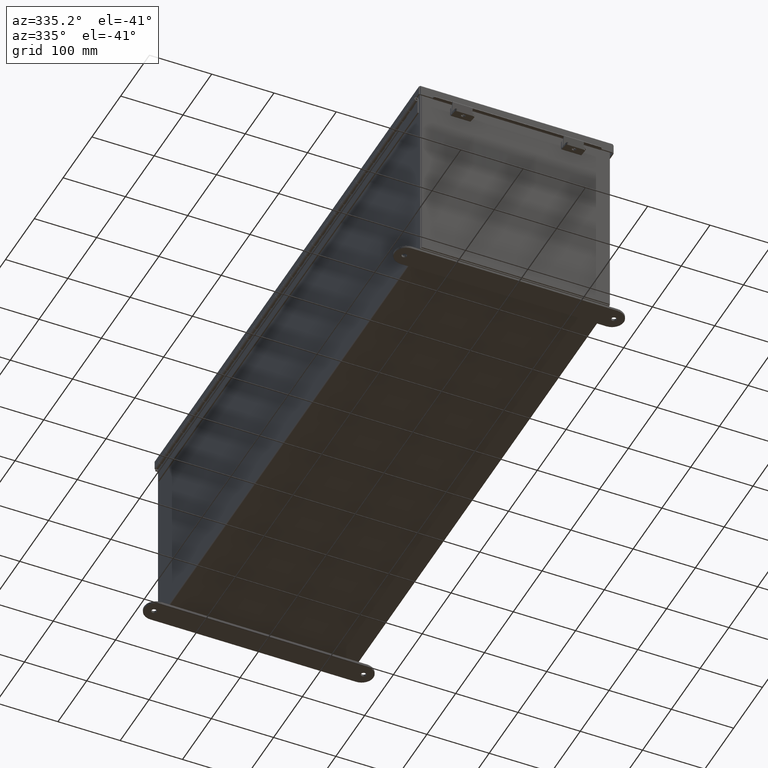
[diagram: clean part render]
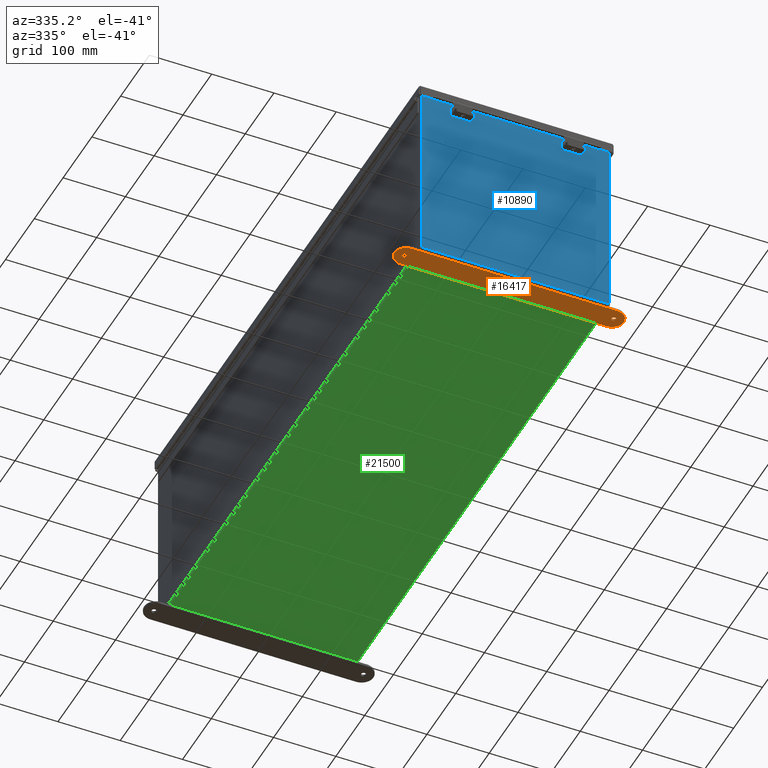
[diagram: same view with three faces highlighted in distinct colors, each labeled with its STEP entity id]
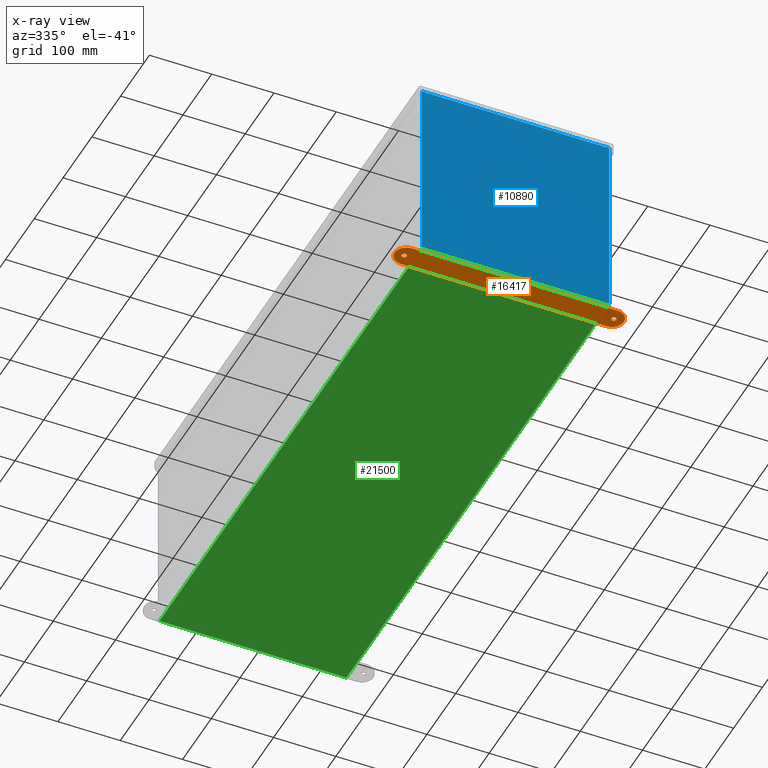
[diagram: x-ray of the same camera — body ghosted, the three highlighted faces saturated]
A machine part, auxiliary view with three faces highlighted in distinct colors.
The next image is the same camera in x-ray (body ghosted, the three faces saturated) — at least one of them is partly hidden behind the body in this view.
Their STEP definitions:

[orange] entity #16417 — the highlighted planar face has unit normal (0, 0, -1).
#129 = CARTESIAN_POINT ( 'NONE',  ( -6.500000000000000000, 0.4120940649496124300, -0.1345000000000000100 ) ) ;
#614 = FACE_OUTER_BOUND ( 'NONE', #12511, .T. ) ;
#1650 = CARTESIAN_POINT ( 'NONE',  ( 6.500000000000000000, 0.4120940649496125900, -0.1345000000000000100 ) ) ;
#1959 = DIRECTION ( 'NONE',  ( -1.000000000000000000, 0.0000000000000000000, 0.0000000000000000000 ) ) ;
#2119 = CIRCLE ( 'NONE', #18543, 0.1564999999999992800 ) ;
#2143 = EDGE_CURVE ( 'NONE', #25189, #12037, #6614, .T. ) ;
#2448 = DIRECTION ( 'NONE',  ( 1.000000000000000000, 0.0000000000000000000, 0.0000000000000000000 ) ) ;
#2954 = EDGE_CURVE ( 'NONE', #25446, #25842, #4046, .T. ) ;
#3486 = CIRCLE ( 'NONE', #26088, 0.7500000000000015500 ) ;
#3798 = CARTESIAN_POINT ( 'NONE',  ( 7.250000000000001800, 0.4120940649496125900, -0.1345000000000000100 ) ) ;
#3945 = DIRECTION ( 'NONE',  ( -1.000000000000000000, 0.0000000000000000000, 0.0000000000000000000 ) ) ;
#4012 = CIRCLE ( 'NONE', #22273, 0.7499999999999993300 ) ;
#4046 = CIRCLE ( 'NONE', #13680, 0.7500000000000015500 ) ;
#4097 = VERTEX_POINT ( 'NONE', #4166 ) ;
#4166 = CARTESIAN_POINT ( 'NONE',  ( -6.781499999999999400, 0.4120940649496083700, -0.1345000000000000100 ) ) ;
#5371 = CARTESIAN_POINT ( 'NONE',  ( 6.625000000000000900, 0.4120940649496083700, -0.1345000000000000100 ) ) ;
#5433 = AXIS2_PLACEMENT_3D ( 'NONE', #7568, #12238, #28318 ) ;
#5600 = DIRECTION ( 'NONE',  ( -0.0000000000000000000, -0.0000000000000000000, -1.000000000000000000 ) ) ;
#5738 = CARTESIAN_POINT ( 'NONE',  ( 6.500000000000000000, -0.3379059350503891300, -0.1345000000000000100 ) ) ;
#6314 = ORIENTED_EDGE ( 'NONE', *, *, #20263, .F. ) ;
#6614 = CIRCLE ( 'NONE', #26400, 0.1564999999999992800 ) ;
#6650 = LINE ( 'NONE', #13742, #12087 ) ;
#6714 = FACE_BOUND ( 'NONE', #21770, .T. ) ;
#7316 = AXIS2_PLACEMENT_3D ( 'NONE', #29550, #15741, #1959 ) ;
#7371 = VERTEX_POINT ( 'NONE', #13708 ) ;
#7568 = CARTESIAN_POINT ( 'NONE',  ( 6.500000000000000000, 0.4120940649496125900, -0.1345000000000000100 ) ) ;
#7681 = DIRECTION ( 'NONE',  ( -1.000000000000000000, 0.0000000000000000000, 0.0000000000000000000 ) ) ;
#9074 = DIRECTION ( 'NONE',  ( 1.000000000000000000, -1.260852920152736700E-016, 0.0000000000000000000 ) ) ;
#9695 = DIRECTION ( 'NONE',  ( 0.0000000000000000000, 0.0000000000000000000, 1.000000000000000000 ) ) ;
#9756 = CARTESIAN_POINT ( 'NONE',  ( 6.468500000000001500, 0.4120940649496083700, -0.1345000000000000100 ) ) ;
#10031 = EDGE_LOOP ( 'NONE', ( #20342, #25031 ) ) ;
#10564 = ORIENTED_EDGE ( 'NONE', *, *, #26998, .F. ) ;
#11554 = CARTESIAN_POINT ( 'NONE',  ( -6.500000000000000000, 1.162094064949612300, -0.1345000000000000100 ) ) ;
#11586 = ORIENTED_EDGE ( 'NONE', *, *, #24355, .T. ) ;
#12037 = VERTEX_POINT ( 'NONE', #28066 ) ;
#12087 = VECTOR ( 'NONE', #9074, 39.37007874015748100 ) ;
#12238 = DIRECTION ( 'NONE',  ( -0.0000000000000000000, 0.0000000000000000000, -1.000000000000000000 ) ) ;
#12496 = ORIENTED_EDGE ( 'NONE', *, *, #16252, .F. ) ;
#12511 = EDGE_LOOP ( 'NONE', ( #21540, #10564, #6314, #12496, #28751 ) ) ;
#12698 = CARTESIAN_POINT ( 'NONE',  ( -6.625000000000000900, 0.4120940649496083700, -0.1345000000000000100 ) ) ;
#12876 = VERTEX_POINT ( 'NONE', #5738 ) ;
#13303 = CARTESIAN_POINT ( 'NONE',  ( -6.468500000000001500, 0.4120940649496083700, -0.1345000000000000100 ) ) ;
#13680 = AXIS2_PLACEMENT_3D ( 'NONE', #1650, #17750, #3945 ) ;
#13708 = CARTESIAN_POINT ( 'NONE',  ( -6.500000000000000000, 1.162094064949612300, -0.1345000000000000100 ) ) ;
#13742 = CARTESIAN_POINT ( 'NONE',  ( -6.500000000000000000, -0.3379059350503874600, -0.1345000000000000100 ) ) ;
#14213 = EDGE_CURVE ( 'NONE', #12037, #25189, #26314, .T. ) ;
#14786 = ORIENTED_EDGE ( 'NONE', *, *, #15408, .T. ) ;
#14972 = DIRECTION ( 'NONE',  ( -1.000000000000000000, 0.0000000000000000000, 0.0000000000000000000 ) ) ;
#15408 = EDGE_CURVE ( 'NONE', #25551, #4097, #2119, .T. ) ;
#15741 = DIRECTION ( 'NONE',  ( 0.0000000000000000000, 0.0000000000000000000, 1.000000000000000000 ) ) ;
#16236 = DIRECTION ( 'NONE',  ( 0.0000000000000000000, 0.0000000000000000000, 1.000000000000000000 ) ) ;
#16252 = EDGE_CURVE ( 'NONE', #25842, #7371, #22589, .T. ) ;
#16254 = DIRECTION ( 'NONE',  ( -1.000000000000000000, -1.260852920152736700E-016, -0.0000000000000000000 ) ) ;
#16335 = EDGE_CURVE ( 'NONE', #12876, #25446, #3486, .T. ) ;
#16417 = ADVANCED_FACE ( 'NONE', ( #614, #6714, #18975 ), #23702, .T. ) ;
#16475 = VECTOR ( 'NONE', #16254, 39.37007874015748100 ) ;
#16771 = CARTESIAN_POINT ( 'NONE',  ( 6.500000000000000000, 1.162094064949614100, -0.1345000000000000100 ) ) ;
#17750 = DIRECTION ( 'NONE',  ( 0.0000000000000000000, 0.0000000000000000000, 1.000000000000000000 ) ) ;
#18543 = AXIS2_PLACEMENT_3D ( 'NONE', #12698, #28780, #14972 ) ;
#18975 = FACE_BOUND ( 'NONE', #10031, .T. ) ;
#19019 = CIRCLE ( 'NONE', #7316, 0.1564999999999992800 ) ;
#19421 = CARTESIAN_POINT ( 'NONE',  ( 6.625000000000000900, 0.4120940649496083700, -0.1345000000000000100 ) ) ;
#20263 = EDGE_CURVE ( 'NONE', #7371, #29466, #4012, .T. ) ;
#20342 = ORIENTED_EDGE ( 'NONE', *, *, #14213, .F. ) ;
#21415 = AXIS2_PLACEMENT_3D ( 'NONE', #5371, #21487, #7681 ) ;
#21487 = DIRECTION ( 'NONE',  ( -0.0000000000000000000, -0.0000000000000000000, -1.000000000000000000 ) ) ;
#21540 = ORIENTED_EDGE ( 'NONE', *, *, #16335, .F. ) ;
#21724 = DIRECTION ( 'NONE',  ( -1.000000000000000000, 0.0000000000000000000, 0.0000000000000000000 ) ) ;
#21770 = EDGE_LOOP ( 'NONE', ( #14786, #11586 ) ) ;
#22273 = AXIS2_PLACEMENT_3D ( 'NONE', #129, #16236, #2448 ) ;
#22589 = LINE ( 'NONE', #11554, #16475 ) ;
#23054 = CARTESIAN_POINT ( 'NONE',  ( -6.500000000000000000, -0.3379059350503874600, -0.1345000000000000100 ) ) ;
#23498 = CARTESIAN_POINT ( 'NONE',  ( 6.500000000000000000, 0.4120940649496125900, -0.1345000000000000100 ) ) ;
#23702 = PLANE ( 'NONE',  #5433 ) ;
#24355 = EDGE_CURVE ( 'NONE', #4097, #25551, #19019, .T. ) ;
#25031 = ORIENTED_EDGE ( 'NONE', *, *, #2143, .F. ) ;
#25189 = VERTEX_POINT ( 'NONE', #9756 ) ;
#25446 = VERTEX_POINT ( 'NONE', #3798 ) ;
#25551 = VERTEX_POINT ( 'NONE', #13303 ) ;
#25835 = DIRECTION ( 'NONE',  ( -1.000000000000000000, 0.0000000000000000000, 0.0000000000000000000 ) ) ;
#25842 = VERTEX_POINT ( 'NONE', #16771 ) ;
#26088 = AXIS2_PLACEMENT_3D ( 'NONE', #23498, #9695, #25835 ) ;
#26314 = CIRCLE ( 'NONE', #21415, 0.1564999999999992800 ) ;
#26400 = AXIS2_PLACEMENT_3D ( 'NONE', #19421, #5600, #21724 ) ;
#26998 = EDGE_CURVE ( 'NONE', #29466, #12876, #6650, .T. ) ;
#28066 = CARTESIAN_POINT ( 'NONE',  ( 6.781499999999999400, 0.4120940649496083700, -0.1345000000000000100 ) ) ;
#28318 = DIRECTION ( 'NONE',  ( -1.000000000000000000, 0.0000000000000000000, 0.0000000000000000000 ) ) ;
#28751 = ORIENTED_EDGE ( 'NONE', *, *, #2954, .F. ) ;
#28780 = DIRECTION ( 'NONE',  ( 0.0000000000000000000, 0.0000000000000000000, 1.000000000000000000 ) ) ;
#29466 = VERTEX_POINT ( 'NONE', #23054 ) ;
#29550 = CARTESIAN_POINT ( 'NONE',  ( -6.625000000000000900, 0.4120940649496083700, -0.1345000000000000100 ) ) ;

[blue] entity #10890 — the highlighted planar face has unit normal (-0, 1, -0).
#121 = DIRECTION ( 'NONE',  ( 0.0000000000000000000, 0.0000000000000000000, -1.000000000000000000 ) ) ;
#597 = EDGE_CURVE ( 'NONE', #17487, #22657, #15495, .T. ) ;
#602 = VECTOR ( 'NONE', #29457, 39.37007874015748100 ) ;
#622 = VERTEX_POINT ( 'NONE', #17787 ) ;
#707 = CIRCLE ( 'NONE', #8068, 0.01867500000000058700 ) ;
#1095 = ORIENTED_EDGE ( 'NONE', *, *, #597, .F. ) ;
#1250 = DIRECTION ( 'NONE',  ( 0.0000000000000000000, 0.0000000000000000000, -1.000000000000000000 ) ) ;
#1380 = VERTEX_POINT ( 'NONE', #25617 ) ;
#1531 = VERTEX_POINT ( 'NONE', #16331 ) ;
#1589 = CARTESIAN_POINT ( 'NONE',  ( -5.619650000000008900, 0.0000000000000000000, 0.0000000000000000000 ) ) ;
#1785 = CARTESIAN_POINT ( 'NONE',  ( -5.925300000000009800, 0.0000000000000000000, 5.925300000000002700 ) ) ;
#1932 = DIRECTION ( 'NONE',  ( 1.000000000000000000, 5.526334185345597900E-031, -0.0000000000000000000 ) ) ;
#2364 = LINE ( 'NONE', #18030, #7018 ) ;
#2407 = CARTESIAN_POINT ( 'NONE',  ( -5.600975000000017800, 0.0000000000000000000, 5.874949999999999200 ) ) ;
#2492 = CARTESIAN_POINT ( 'NONE',  ( -5.619650000000017800, 0.0000000000000000000, 5.874949999999999200 ) ) ;
#2515 = VECTOR ( 'NONE', #121, 39.37007874015748100 ) ;
#2725 = DIRECTION ( 'NONE',  ( 0.0000000000000000000, 0.0000000000000000000, -1.000000000000000000 ) ) ;
#2732 = CARTESIAN_POINT ( 'NONE',  ( -5.925300000000009800, 0.0000000000000000000, 5.925300000000002700 ) ) ;
#3554 = CARTESIAN_POINT ( 'NONE',  ( -5.582300000000008900, 0.0000000000000000000, 0.0000000000000000000 ) ) ;
#3719 = ORIENTED_EDGE ( 'NONE', *, *, #5464, .F. ) ;
#4481 = ORIENTED_EDGE ( 'NONE', *, *, #23396, .F. ) ;
#4705 = DIRECTION ( 'NONE',  ( 0.0000000000000000000, 0.0000000000000000000, -1.000000000000000000 ) ) ;
#5464 = EDGE_CURVE ( 'NONE', #622, #27271, #11875, .T. ) ;
#5672 = LINE ( 'NONE', #18978, #29475 ) ;
#5704 = VECTOR ( 'NONE', #1250, 39.37007874015748100 ) ;
#6946 = CARTESIAN_POINT ( 'NONE',  ( 5.619649999999990300, 0.0000000000000000000, 0.0000000000000000000 ) ) ;
#7018 = VECTOR ( 'NONE', #1932, 39.37007874015748100 ) ;
#7251 = EDGE_CURVE ( 'NONE', #7647, #1531, #10677, .T. ) ;
#7399 = VECTOR ( 'NONE', #12636, 39.37007874015748100 ) ;
#7647 = VERTEX_POINT ( 'NONE', #10896 ) ;
#8068 = AXIS2_PLACEMENT_3D ( 'NONE', #2407, #18516, #4705 ) ;
#8403 = VERTEX_POINT ( 'NONE', #18377 ) ;
#8479 = ORIENTED_EDGE ( 'NONE', *, *, #26119, .T. ) ;
#8587 = VERTEX_POINT ( 'NONE', #12142 ) ;
#9621 = CIRCLE ( 'NONE', #11385, 0.01867500000000058700 ) ;
#10290 = DIRECTION ( 'NONE',  ( 5.526334185345597900E-031, 1.000000000000000000, -0.0000000000000000000 ) ) ;
#10303 = CARTESIAN_POINT ( 'NONE',  ( -5.925300000000009800, 0.0000000000000000000, -5.925299999999999100 ) ) ;
#10677 = LINE ( 'NONE', #20034, #22184 ) ;
#10890 = ADVANCED_FACE ( 'NONE', ( #24554 ), #28025, .F. ) ;
#10896 = CARTESIAN_POINT ( 'NONE',  ( 5.582299999999979600, 0.0000000000000000000, 5.874950000000001000 ) ) ;
#10994 = DIRECTION ( 'NONE',  ( 0.0000000000000000000, 0.0000000000000000000, 1.000000000000000000 ) ) ;
#11346 = AXIS2_PLACEMENT_3D ( 'NONE', #14236, #16534, #2725 ) ;
#11385 = AXIS2_PLACEMENT_3D ( 'NONE', #24097, #10290, #26391 ) ;
#11875 = LINE ( 'NONE', #3554, #5704 ) ;
#12142 = CARTESIAN_POINT ( 'NONE',  ( 5.619649999999989400, 0.0000000000000000000, 5.925300000000002700 ) ) ;
#12636 = DIRECTION ( 'NONE',  ( -1.000000000000000000, -5.532854492637916100E-031, 9.220960942616447800E-017 ) ) ;
#12672 = EDGE_CURVE ( 'NONE', #17462, #22657, #27327, .T. ) ;
#13104 = EDGE_CURVE ( 'NONE', #23706, #7647, #9621, .T. ) ;
#13554 = LINE ( 'NONE', #10303, #7399 ) ;
#13824 = EDGE_LOOP ( 'NONE', ( #1095, #4481, #3719, #18811, #18711, #20491, #27443, #29801, #20217, #20714, #8479, #19359 ) ) ;
#14070 = LINE ( 'NONE', #6946, #2515 ) ;
#14236 = CARTESIAN_POINT ( 'NONE',  ( 0.0000000000000000000, 0.0000000000000000000, 0.0000000000000000000 ) ) ;
#14665 = VERTEX_POINT ( 'NONE', #23083 ) ;
#14688 = EDGE_CURVE ( 'NONE', #8587, #23706, #14070, .T. ) ;
#15064 = VECTOR ( 'NONE', #21174, 39.37007874015748100 ) ;
#15495 = LINE ( 'NONE', #1589, #27041 ) ;
#15954 = VECTOR ( 'NONE', #20197, 39.37007874015748100 ) ;
#16331 = CARTESIAN_POINT ( 'NONE',  ( 5.582299999999990300, 0.0000000000000000000, 5.912300000000000100 ) ) ;
#16534 = DIRECTION ( 'NONE',  ( -5.526334185345597900E-031, -1.000000000000000000, -0.0000000000000000000 ) ) ;
#16663 = DIRECTION ( 'NONE',  ( 9.220960942616447800E-017, 0.0000000000000000000, -1.000000000000000000 ) ) ;
#17462 = VERTEX_POINT ( 'NONE', #23033 ) ;
#17487 = VERTEX_POINT ( 'NONE', #2492 ) ;
#17518 = LINE ( 'NONE', #24848, #602 ) ;
#17688 = DIRECTION ( 'NONE',  ( 0.0000000000000000000, 0.0000000000000000000, 1.000000000000000000 ) ) ;
#17787 = CARTESIAN_POINT ( 'NONE',  ( -5.582300000000008900, 2.185478394931410600E-015, 5.912299999999998300 ) ) ;
#18030 = CARTESIAN_POINT ( 'NONE',  ( -5.582300000000009800, 2.185478394931410600E-015, 5.912299999999998300 ) ) ;
#18377 = CARTESIAN_POINT ( 'NONE',  ( -5.925300000000009800, 0.0000000000000000000, -5.925299999999999100 ) ) ;
#18516 = DIRECTION ( 'NONE',  ( 5.526334185345597900E-031, 1.000000000000000000, -0.0000000000000000000 ) ) ;
#18711 = ORIENTED_EDGE ( 'NONE', *, *, #7251, .F. ) ;
#18811 = ORIENTED_EDGE ( 'NONE', *, *, #26707, .T. ) ;
#18978 = CARTESIAN_POINT ( 'NONE',  ( 5.925299999999990200, 0.0000000000000000000, 5.925300000000000000 ) ) ;
#19359 = ORIENTED_EDGE ( 'NONE', *, *, #12672, .T. ) ;
#19662 = EDGE_CURVE ( 'NONE', #8587, #14665, #20629, .T. ) ;
#20034 = CARTESIAN_POINT ( 'NONE',  ( 5.582299999999990300, 0.0000000000000000000, 9.834652777191348400E-015 ) ) ;
#20197 = DIRECTION ( 'NONE',  ( 1.000000000000000000, 5.526334185345597900E-031, 0.0000000000000000000 ) ) ;
#20217 = ORIENTED_EDGE ( 'NONE', *, *, #28361, .T. ) ;
#20491 = ORIENTED_EDGE ( 'NONE', *, *, #13104, .F. ) ;
#20629 = LINE ( 'NONE', #1785, #15954 ) ;
#20714 = ORIENTED_EDGE ( 'NONE', *, *, #26472, .T. ) ;
#21174 = DIRECTION ( 'NONE',  ( 1.000000000000000000, 5.526334185345597900E-031, 0.0000000000000000000 ) ) ;
#21927 = CARTESIAN_POINT ( 'NONE',  ( 5.619649999999980500, 0.0000000000000000000, 5.874950000000001000 ) ) ;
#22184 = VECTOR ( 'NONE', #10994, 39.37007874015748100 ) ;
#22367 = CARTESIAN_POINT ( 'NONE',  ( -5.619650000000008900, 0.0000000000000000000, 5.925300000000000000 ) ) ;
#22657 = VERTEX_POINT ( 'NONE', #22367 ) ;
#23033 = CARTESIAN_POINT ( 'NONE',  ( -5.925300000000009800, 0.0000000000000000000, 5.925300000000002700 ) ) ;
#23083 = CARTESIAN_POINT ( 'NONE',  ( 5.925299999999990200, 0.0000000000000000000, 5.925300000000000000 ) ) ;
#23396 = EDGE_CURVE ( 'NONE', #27271, #17487, #707, .T. ) ;
#23706 = VERTEX_POINT ( 'NONE', #21927 ) ;
#24097 = CARTESIAN_POINT ( 'NONE',  ( 5.600974999999979600, 0.0000000000000000000, 5.874950000000001000 ) ) ;
#24554 = FACE_OUTER_BOUND ( 'NONE', #13824, .T. ) ;
#24848 = CARTESIAN_POINT ( 'NONE',  ( -5.925300000000009800, 0.0000000000000000000, 5.925300000000002700 ) ) ;
#25617 = CARTESIAN_POINT ( 'NONE',  ( 5.925299999999991100, 0.0000000000000000000, -5.925300000000000000 ) ) ;
#26095 = CARTESIAN_POINT ( 'NONE',  ( -5.582300000000018700, 0.0000000000000000000, 5.874949999999999200 ) ) ;
#26119 = EDGE_CURVE ( 'NONE', #8403, #17462, #17518, .T. ) ;
#26391 = DIRECTION ( 'NONE',  ( 0.0000000000000000000, 0.0000000000000000000, -1.000000000000000000 ) ) ;
#26472 = EDGE_CURVE ( 'NONE', #1380, #8403, #13554, .T. ) ;
#26707 = EDGE_CURVE ( 'NONE', #622, #1531, #2364, .T. ) ;
#27041 = VECTOR ( 'NONE', #17688, 39.37007874015748100 ) ;
#27271 = VERTEX_POINT ( 'NONE', #26095 ) ;
#27327 = LINE ( 'NONE', #2732, #15064 ) ;
#27443 = ORIENTED_EDGE ( 'NONE', *, *, #14688, .F. ) ;
#28025 = PLANE ( 'NONE',  #11346 ) ;
#28361 = EDGE_CURVE ( 'NONE', #14665, #1380, #5672, .T. ) ;
#29457 = DIRECTION ( 'NONE',  ( 0.0000000000000000000, 0.0000000000000000000, 1.000000000000000000 ) ) ;
#29475 = VECTOR ( 'NONE', #16663, 39.37007874015748100 ) ;
#29801 = ORIENTED_EDGE ( 'NONE', *, *, #19662, .T. ) ;

[green] entity #21500 — the highlighted planar face has unit normal (0, 0, -1).
#80 = VECTOR ( 'NONE', #26477, 39.37007874015748100 ) ;
#822 = VERTEX_POINT ( 'NONE', #25530 ) ;
#3336 = EDGE_CURVE ( 'NONE', #6651, #822, #19166, .T. ) ;
#3407 = VERTEX_POINT ( 'NONE', #4000 ) ;
#3854 = VERTEX_POINT ( 'NONE', #26444 ) ;
#4000 = CARTESIAN_POINT ( 'NONE',  ( 5.912299999999999200, -17.92530000000000000, -0.07470000000000000300 ) ) ;
#4943 = EDGE_CURVE ( 'NONE', #6651, #3407, #13327, .T. ) ;
#6651 = VERTEX_POINT ( 'NONE', #29541 ) ;
#7037 = AXIS2_PLACEMENT_3D ( 'NONE', #17707, #26993, #13206 ) ;
#7076 = ORIENTED_EDGE ( 'NONE', *, *, #24771, .F. ) ;
#7452 = VECTOR ( 'NONE', #24511, 39.37007874015748100 ) ;
#8037 = CARTESIAN_POINT ( 'NONE',  ( -5.912300000000001000, -17.92530000000000000, -0.07469999999999940600 ) ) ;
#9003 = CARTESIAN_POINT ( 'NONE',  ( 5.912299999999999200, 17.92530000000000000, -0.07469999999999994700 ) ) ;
#10925 = VECTOR ( 'NONE', #13768, 39.37007874015748100 ) ;
#12582 = CARTESIAN_POINT ( 'NONE',  ( -6.000000000000001800, -17.92530000000000000, -0.07470000000000000300 ) ) ;
#13206 = DIRECTION ( 'NONE',  ( -1.000000000000000000, 0.0000000000000000000, -0.0000000000000000000 ) ) ;
#13327 = LINE ( 'NONE', #12582, #24867 ) ;
#13612 = LINE ( 'NONE', #22173, #7452 ) ;
#13768 = DIRECTION ( 'NONE',  ( -0.0000000000000000000, -1.000000000000000000, -0.0000000000000000000 ) ) ;
#13811 = FACE_OUTER_BOUND ( 'NONE', #17169, .T. ) ;
#17098 = ORIENTED_EDGE ( 'NONE', *, *, #4943, .F. ) ;
#17169 = EDGE_LOOP ( 'NONE', ( #7076, #22002, #17098, #29383 ) ) ;
#17707 = CARTESIAN_POINT ( 'NONE',  ( 0.0000000000000000000, 0.0000000000000000000, -0.07470000000000000300 ) ) ;
#19166 = LINE ( 'NONE', #8037, #80 ) ;
#19778 = EDGE_CURVE ( 'NONE', #3854, #3407, #29280, .T. ) ;
#21500 = ADVANCED_FACE ( 'NONE', ( #13811 ), #22336, .T. ) ;
#22002 = ORIENTED_EDGE ( 'NONE', *, *, #19778, .T. ) ;
#22173 = CARTESIAN_POINT ( 'NONE',  ( -6.000000000000001800, 17.92530000000000000, -0.07470000000000000300 ) ) ;
#22336 = PLANE ( 'NONE',  #7037 ) ;
#24038 = DIRECTION ( 'NONE',  ( 1.000000000000000000, 0.0000000000000000000, 0.0000000000000000000 ) ) ;
#24511 = DIRECTION ( 'NONE',  ( -1.000000000000000000, -0.0000000000000000000, -0.0000000000000000000 ) ) ;
#24771 = EDGE_CURVE ( 'NONE', #3854, #822, #13612, .T. ) ;
#24867 = VECTOR ( 'NONE', #24038, 39.37007874015748100 ) ;
#25530 = CARTESIAN_POINT ( 'NONE',  ( -5.912300000000001000, 17.92530000000000000, -0.07470000000000000300 ) ) ;
#26444 = CARTESIAN_POINT ( 'NONE',  ( 5.912299999999999200, 17.92530000000000000, -0.07469999999999994700 ) ) ;
#26477 = DIRECTION ( 'NONE',  ( -0.0000000000000000000, 1.000000000000000000, -0.0000000000000000000 ) ) ;
#26993 = DIRECTION ( 'NONE',  ( 0.0000000000000000000, 0.0000000000000000000, -1.000000000000000000 ) ) ;
#29280 = LINE ( 'NONE', #9003, #10925 ) ;
#29383 = ORIENTED_EDGE ( 'NONE', *, *, #3336, .T. ) ;
#29541 = CARTESIAN_POINT ( 'NONE',  ( -5.912300000000001000, -17.92530000000000000, -0.07469999999999940600 ) ) ;